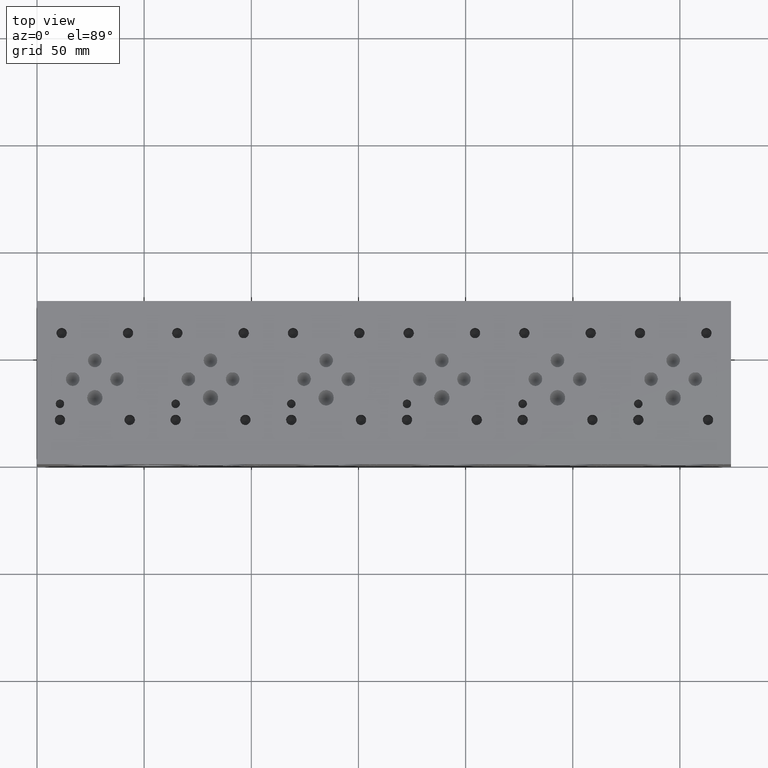
[diagram: clean part render]
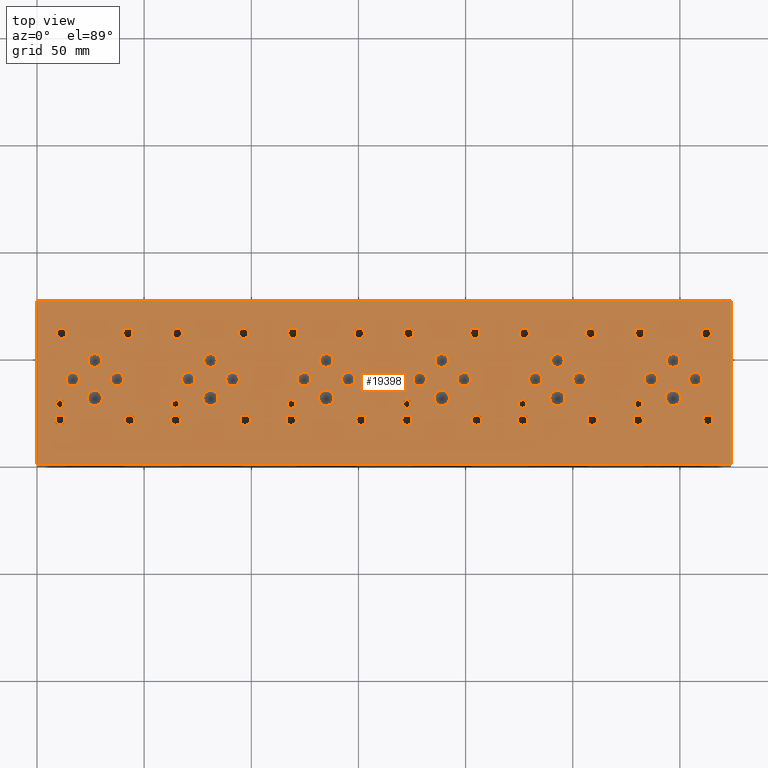
[diagram: same view with one face highlighted and labeled with its STEP entity id]
A machine part, top view. The second image highlights one B-rep face of the part: STEP entity #19398.
In plain terms, the highlighted planar face has unit normal (0, 0, 1).
Its self-contained STEP definition (entity closure, byte-faithful):
#361=CIRCLE('',#19871,1.9812);
#362=CIRCLE('',#19872,1.9812);
#365=CIRCLE('',#19877,1.9812);
#366=CIRCLE('',#19878,1.9812);
#369=CIRCLE('',#19883,1.9812);
#370=CIRCLE('',#19884,1.9812);
#373=CIRCLE('',#19889,1.9812);
#374=CIRCLE('',#19890,1.9812);
#377=CIRCLE('',#19895,1.9812);
#378=CIRCLE('',#19896,1.9812);
#381=CIRCLE('',#19901,3.5687);
#382=CIRCLE('',#19902,3.5687);
#385=CIRCLE('',#19907,3.5687);
#386=CIRCLE('',#19908,3.5687);
#389=CIRCLE('',#19913,3.5687);
#390=CIRCLE('',#19914,3.5687);
#393=CIRCLE('',#19919,3.5687);
#394=CIRCLE('',#19920,3.5687);
#397=CIRCLE('',#19925,3.5687);
#398=CIRCLE('',#19926,3.5687);
#401=CIRCLE('',#19931,3.5687);
#402=CIRCLE('',#19932,3.5687);
#405=CIRCLE('',#19937,3.175);
#406=CIRCLE('',#19938,3.175);
#409=CIRCLE('',#19943,3.175);
#410=CIRCLE('',#19944,3.175);
#413=CIRCLE('',#19949,3.175);
#414=CIRCLE('',#19950,3.175);
#417=CIRCLE('',#19955,3.175);
#418=CIRCLE('',#19956,3.175);
#421=CIRCLE('',#19961,3.175);
#422=CIRCLE('',#19962,3.175);
#425=CIRCLE('',#19967,3.175);
#426=CIRCLE('',#19968,3.175);
#429=CIRCLE('',#19973,3.175);
#430=CIRCLE('',#19974,3.175);
#433=CIRCLE('',#19979,3.175);
#434=CIRCLE('',#19980,3.175);
#437=CIRCLE('',#19985,3.175);
#438=CIRCLE('',#19986,3.175);
#441=CIRCLE('',#19991,3.175);
#442=CIRCLE('',#19992,3.175);
#445=CIRCLE('',#19997,3.175);
#446=CIRCLE('',#19998,3.175);
#449=CIRCLE('',#20003,3.175);
#450=CIRCLE('',#20004,3.175);
#453=CIRCLE('',#20009,3.175);
#454=CIRCLE('',#20010,3.175);
#457=CIRCLE('',#20015,3.175);
#458=CIRCLE('',#20016,3.175);
#461=CIRCLE('',#20021,3.175);
#462=CIRCLE('',#20022,3.175);
#465=CIRCLE('',#20027,3.175);
#466=CIRCLE('',#20028,3.175);
#469=CIRCLE('',#20033,3.175);
#470=CIRCLE('',#20034,3.175);
#473=CIRCLE('',#20039,3.175);
#474=CIRCLE('',#20040,3.175);
#477=CIRCLE('',#20045,1.9812);
#478=CIRCLE('',#20046,1.9812);
#484=CIRCLE('',#20055,2.413);
#485=CIRCLE('',#20056,2.413);
#491=CIRCLE('',#20066,2.413);
#492=CIRCLE('',#20067,2.413);
#498=CIRCLE('',#20077,2.413);
#499=CIRCLE('',#20078,2.413);
#505=CIRCLE('',#20088,2.413);
#506=CIRCLE('',#20089,2.413);
#512=CIRCLE('',#20099,2.413);
#513=CIRCLE('',#20100,2.413);
#519=CIRCLE('',#20110,2.413);
#520=CIRCLE('',#20111,2.413);
#526=CIRCLE('',#20121,2.413);
#527=CIRCLE('',#20122,2.413);
#533=CIRCLE('',#20132,2.413);
#534=CIRCLE('',#20133,2.413);
#540=CIRCLE('',#20143,2.413);
#541=CIRCLE('',#20144,2.413);
#547=CIRCLE('',#20154,2.413);
#548=CIRCLE('',#20155,2.413);
#554=CIRCLE('',#20165,2.413);
#555=CIRCLE('',#20166,2.413);
#561=CIRCLE('',#20176,2.413);
#562=CIRCLE('',#20177,2.413);
#568=CIRCLE('',#20187,2.413);
#569=CIRCLE('',#20188,2.413);
#575=CIRCLE('',#20198,2.413);
#576=CIRCLE('',#20199,2.413);
#582=CIRCLE('',#20209,2.413);
#583=CIRCLE('',#20210,2.413);
#589=CIRCLE('',#20220,2.413);
#590=CIRCLE('',#20221,2.413);
#596=CIRCLE('',#20231,2.413);
#597=CIRCLE('',#20232,2.413);
#603=CIRCLE('',#20242,2.413);
#604=CIRCLE('',#20243,2.413);
#610=CIRCLE('',#20253,2.413);
#611=CIRCLE('',#20254,2.413);
#617=CIRCLE('',#20264,2.413);
#618=CIRCLE('',#20265,2.413);
#624=CIRCLE('',#20275,2.413);
#625=CIRCLE('',#20276,2.413);
#631=CIRCLE('',#20286,2.413);
#632=CIRCLE('',#20287,2.413);
#638=CIRCLE('',#20297,2.413);
#639=CIRCLE('',#20298,2.413);
#645=CIRCLE('',#20308,2.413);
#646=CIRCLE('',#20309,2.413);
#1107=FACE_BOUND('',#4046,.T.);
#1108=FACE_BOUND('',#4047,.T.);
#1109=FACE_BOUND('',#4048,.T.);
#1110=FACE_BOUND('',#4049,.T.);
#1111=FACE_BOUND('',#4050,.T.);
#1112=FACE_BOUND('',#4051,.T.);
#1113=FACE_BOUND('',#4052,.T.);
#1114=FACE_BOUND('',#4053,.T.);
#1115=FACE_BOUND('',#4054,.T.);
#1116=FACE_BOUND('',#4055,.T.);
#1117=FACE_BOUND('',#4056,.T.);
#1118=FACE_BOUND('',#4057,.T.);
#1119=FACE_BOUND('',#4058,.T.);
#1120=FACE_BOUND('',#4059,.T.);
#1121=FACE_BOUND('',#4060,.T.);
#1122=FACE_BOUND('',#4061,.T.);
#1123=FACE_BOUND('',#4062,.T.);
#1124=FACE_BOUND('',#4063,.T.);
#1125=FACE_BOUND('',#4064,.T.);
#1126=FACE_BOUND('',#4065,.T.);
#1127=FACE_BOUND('',#4066,.T.);
#1128=FACE_BOUND('',#4067,.T.);
#1129=FACE_BOUND('',#4068,.T.);
#1130=FACE_BOUND('',#4069,.T.);
#1131=FACE_BOUND('',#4070,.T.);
#1132=FACE_BOUND('',#4071,.T.);
#1133=FACE_BOUND('',#4072,.T.);
#1134=FACE_BOUND('',#4073,.T.);
#1135=FACE_BOUND('',#4074,.T.);
#1136=FACE_BOUND('',#4075,.T.);
#1137=FACE_BOUND('',#4076,.T.);
#1138=FACE_BOUND('',#4077,.T.);
#1139=FACE_BOUND('',#4078,.T.);
#1140=FACE_BOUND('',#4079,.T.);
#1141=FACE_BOUND('',#4080,.T.);
#1142=FACE_BOUND('',#4081,.T.);
#1143=FACE_BOUND('',#4082,.T.);
#1144=FACE_BOUND('',#4083,.T.);
#1145=FACE_BOUND('',#4084,.T.);
#1146=FACE_BOUND('',#4085,.T.);
#1147=FACE_BOUND('',#4086,.T.);
#1148=FACE_BOUND('',#4087,.T.);
#1149=FACE_BOUND('',#4088,.T.);
#1150=FACE_BOUND('',#4089,.T.);
#1151=FACE_BOUND('',#4090,.T.);
#1152=FACE_BOUND('',#4091,.T.);
#1153=FACE_BOUND('',#4092,.T.);
#1154=FACE_BOUND('',#4093,.T.);
#1155=FACE_BOUND('',#4094,.T.);
#1156=FACE_BOUND('',#4095,.T.);
#1157=FACE_BOUND('',#4096,.T.);
#1158=FACE_BOUND('',#4097,.T.);
#1159=FACE_BOUND('',#4098,.T.);
#1160=FACE_BOUND('',#4099,.T.);
#2881=FACE_OUTER_BOUND('',#4045,.T.);
#4045=EDGE_LOOP('',(#17169,#17170,#17171,#17172));
#4046=EDGE_LOOP('',(#17173,#17174));
#4047=EDGE_LOOP('',(#17175,#17176));
#4048=EDGE_LOOP('',(#17177,#17178));
#4049=EDGE_LOOP('',(#17179,#17180));
#4050=EDGE_LOOP('',(#17181,#17182));
#4051=EDGE_LOOP('',(#17183,#17184));
#4052=EDGE_LOOP('',(#17185,#17186));
#4053=EDGE_LOOP('',(#17187,#17188));
#4054=EDGE_LOOP('',(#17189,#17190));
#4055=EDGE_LOOP('',(#17191,#17192));
#4056=EDGE_LOOP('',(#17193,#17194));
#4057=EDGE_LOOP('',(#17195,#17196));
#4058=EDGE_LOOP('',(#17197,#17198));
#4059=EDGE_LOOP('',(#17199,#17200));
#4060=EDGE_LOOP('',(#17201,#17202));
#4061=EDGE_LOOP('',(#17203,#17204));
#4062=EDGE_LOOP('',(#17205,#17206));
#4063=EDGE_LOOP('',(#17207,#17208));
#4064=EDGE_LOOP('',(#17209,#17210));
#4065=EDGE_LOOP('',(#17211,#17212));
#4066=EDGE_LOOP('',(#17213,#17214));
#4067=EDGE_LOOP('',(#17215,#17216));
#4068=EDGE_LOOP('',(#17217,#17218));
#4069=EDGE_LOOP('',(#17219,#17220));
#4070=EDGE_LOOP('',(#17221,#17222));
#4071=EDGE_LOOP('',(#17223,#17224));
#4072=EDGE_LOOP('',(#17225,#17226));
#4073=EDGE_LOOP('',(#17227,#17228));
#4074=EDGE_LOOP('',(#17229,#17230));
#4075=EDGE_LOOP('',(#17231,#17232));
#4076=EDGE_LOOP('',(#17233,#17234));
#4077=EDGE_LOOP('',(#17235,#17236));
#4078=EDGE_LOOP('',(#17237,#17238));
#4079=EDGE_LOOP('',(#17239,#17240));
#4080=EDGE_LOOP('',(#17241,#17242));
#4081=EDGE_LOOP('',(#17243,#17244));
#4082=EDGE_LOOP('',(#17245,#17246));
#4083=EDGE_LOOP('',(#17247,#17248));
#4084=EDGE_LOOP('',(#17249,#17250));
#4085=EDGE_LOOP('',(#17251,#17252));
#4086=EDGE_LOOP('',(#17253,#17254));
#4087=EDGE_LOOP('',(#17255,#17256));
#4088=EDGE_LOOP('',(#17257,#17258));
#4089=EDGE_LOOP('',(#17259,#17260));
#4090=EDGE_LOOP('',(#17261,#17262));
#4091=EDGE_LOOP('',(#17263,#17264));
#4092=EDGE_LOOP('',(#17265,#17266));
#4093=EDGE_LOOP('',(#17267,#17268));
#4094=EDGE_LOOP('',(#17269,#17270));
#4095=EDGE_LOOP('',(#17271,#17272));
#4096=EDGE_LOOP('',(#17273,#17274));
#4097=EDGE_LOOP('',(#17275,#17276));
#4098=EDGE_LOOP('',(#17277,#17278));
#4099=EDGE_LOOP('',(#17279,#17280));
#4360=LINE('',#27734,#5951);
#5303=LINE('',#31658,#6894);
#5361=LINE('',#31929,#6952);
#5691=LINE('',#33944,#7282);
#5951=VECTOR('',#21216,10.);
#6894=VECTOR('',#22861,10.);
#6952=VECTOR('',#22973,10.);
#7282=VECTOR('',#25273,10.);
#7607=VERTEX_POINT('',#27731);
#7608=VERTEX_POINT('',#27733);
#8414=VERTEX_POINT('',#31656);
#8472=VERTEX_POINT('',#31928);
#8500=VERTEX_POINT('',#32004);
#8501=VERTEX_POINT('',#32005);
#8505=VERTEX_POINT('',#32017);
#8506=VERTEX_POINT('',#32018);
#8510=VERTEX_POINT('',#32030);
#8511=VERTEX_POINT('',#32031);
#8515=VERTEX_POINT('',#32043);
#8516=VERTEX_POINT('',#32044);
#8520=VERTEX_POINT('',#32056);
#8521=VERTEX_POINT('',#32057);
#8525=VERTEX_POINT('',#32069);
#8526=VERTEX_POINT('',#32070);
#8530=VERTEX_POINT('',#32082);
#8531=VERTEX_POINT('',#32083);
#8535=VERTEX_POINT('',#32095);
#8536=VERTEX_POINT('',#32096);
#8540=VERTEX_POINT('',#32108);
#8541=VERTEX_POINT('',#32109);
#8545=VERTEX_POINT('',#32121);
#8546=VERTEX_POINT('',#32122);
#8550=VERTEX_POINT('',#32134);
#8551=VERTEX_POINT('',#32135);
#8555=VERTEX_POINT('',#32147);
#8556=VERTEX_POINT('',#32148);
#8560=VERTEX_POINT('',#32160);
#8561=VERTEX_POINT('',#32161);
#8565=VERTEX_POINT('',#32173);
#8566=VERTEX_POINT('',#32174);
#8570=VERTEX_POINT('',#32186);
#8571=VERTEX_POINT('',#32187);
#8575=VERTEX_POINT('',#32199);
#8576=VERTEX_POINT('',#32200);
#8580=VERTEX_POINT('',#32212);
#8581=VERTEX_POINT('',#32213);
#8585=VERTEX_POINT('',#32225);
#8586=VERTEX_POINT('',#32226);
#8590=VERTEX_POINT('',#32238);
#8591=VERTEX_POINT('',#32239);
#8595=VERTEX_POINT('',#32251);
#8596=VERTEX_POINT('',#32252);
#8600=VERTEX_POINT('',#32264);
#8601=VERTEX_POINT('',#32265);
#8605=VERTEX_POINT('',#32277);
#8606=VERTEX_POINT('',#32278);
#8610=VERTEX_POINT('',#32290);
#8611=VERTEX_POINT('',#32291);
#8615=VERTEX_POINT('',#32303);
#8616=VERTEX_POINT('',#32304);
#8620=VERTEX_POINT('',#32316);
#8621=VERTEX_POINT('',#32317);
#8625=VERTEX_POINT('',#32329);
#8626=VERTEX_POINT('',#32330);
#8630=VERTEX_POINT('',#32342);
#8631=VERTEX_POINT('',#32343);
#8635=VERTEX_POINT('',#32355);
#8636=VERTEX_POINT('',#32356);
#8640=VERTEX_POINT('',#32368);
#8641=VERTEX_POINT('',#32369);
#8645=VERTEX_POINT('',#32381);
#8646=VERTEX_POINT('',#32382);
#8653=VERTEX_POINT('',#32401);
#8654=VERTEX_POINT('',#32402);
#8661=VERTEX_POINT('',#32423);
#8662=VERTEX_POINT('',#32424);
#8669=VERTEX_POINT('',#32445);
#8670=VERTEX_POINT('',#32446);
#8677=VERTEX_POINT('',#32467);
#8678=VERTEX_POINT('',#32468);
#8685=VERTEX_POINT('',#32489);
#8686=VERTEX_POINT('',#32490);
#8693=VERTEX_POINT('',#32511);
#8694=VERTEX_POINT('',#32512);
#8701=VERTEX_POINT('',#32533);
#8702=VERTEX_POINT('',#32534);
#8709=VERTEX_POINT('',#32555);
#8710=VERTEX_POINT('',#32556);
#8717=VERTEX_POINT('',#32577);
#8718=VERTEX_POINT('',#32578);
#8725=VERTEX_POINT('',#32599);
#8726=VERTEX_POINT('',#32600);
#8733=VERTEX_POINT('',#32621);
#8734=VERTEX_POINT('',#32622);
#8741=VERTEX_POINT('',#32643);
#8742=VERTEX_POINT('',#32644);
#8749=VERTEX_POINT('',#32665);
#8750=VERTEX_POINT('',#32666);
#8757=VERTEX_POINT('',#32687);
#8758=VERTEX_POINT('',#32688);
#8765=VERTEX_POINT('',#32709);
#8766=VERTEX_POINT('',#32710);
#8773=VERTEX_POINT('',#32731);
#8774=VERTEX_POINT('',#32732);
#8781=VERTEX_POINT('',#32753);
#8782=VERTEX_POINT('',#32754);
#8789=VERTEX_POINT('',#32775);
#8790=VERTEX_POINT('',#32776);
#8797=VERTEX_POINT('',#32797);
#8798=VERTEX_POINT('',#32798);
#8805=VERTEX_POINT('',#32819);
#8806=VERTEX_POINT('',#32820);
#8813=VERTEX_POINT('',#32841);
#8814=VERTEX_POINT('',#32842);
#8821=VERTEX_POINT('',#32863);
#8822=VERTEX_POINT('',#32864);
#8829=VERTEX_POINT('',#32885);
#8830=VERTEX_POINT('',#32886);
#8837=VERTEX_POINT('',#32907);
#8838=VERTEX_POINT('',#32908);
#9658=EDGE_CURVE('',#7608,#7607,#4360,.T.);
#10855=EDGE_CURVE('',#7607,#8414,#5303,.T.);
#10937=EDGE_CURVE('',#8472,#7608,#5361,.T.);
#10974=EDGE_CURVE('',#8500,#8501,#361,.T.);
#10975=EDGE_CURVE('',#8501,#8500,#362,.T.);
#10980=EDGE_CURVE('',#8505,#8506,#365,.T.);
#10981=EDGE_CURVE('',#8506,#8505,#366,.T.);
#10986=EDGE_CURVE('',#8510,#8511,#369,.T.);
#10987=EDGE_CURVE('',#8511,#8510,#370,.T.);
#10992=EDGE_CURVE('',#8515,#8516,#373,.T.);
#10993=EDGE_CURVE('',#8516,#8515,#374,.T.);
#10998=EDGE_CURVE('',#8520,#8521,#377,.T.);
#10999=EDGE_CURVE('',#8521,#8520,#378,.T.);
#11004=EDGE_CURVE('',#8525,#8526,#381,.T.);
#11005=EDGE_CURVE('',#8526,#8525,#382,.T.);
#11010=EDGE_CURVE('',#8530,#8531,#385,.T.);
#11011=EDGE_CURVE('',#8531,#8530,#386,.T.);
#11016=EDGE_CURVE('',#8535,#8536,#389,.T.);
#11017=EDGE_CURVE('',#8536,#8535,#390,.T.);
#11022=EDGE_CURVE('',#8540,#8541,#393,.T.);
#11023=EDGE_CURVE('',#8541,#8540,#394,.T.);
#11028=EDGE_CURVE('',#8545,#8546,#397,.T.);
#11029=EDGE_CURVE('',#8546,#8545,#398,.T.);
#11034=EDGE_CURVE('',#8550,#8551,#401,.T.);
#11035=EDGE_CURVE('',#8551,#8550,#402,.T.);
#11040=EDGE_CURVE('',#8555,#8556,#405,.T.);
#11041=EDGE_CURVE('',#8556,#8555,#406,.T.);
#11046=EDGE_CURVE('',#8560,#8561,#409,.T.);
#11047=EDGE_CURVE('',#8561,#8560,#410,.T.);
#11052=EDGE_CURVE('',#8565,#8566,#413,.T.);
#11053=EDGE_CURVE('',#8566,#8565,#414,.T.);
#11058=EDGE_CURVE('',#8570,#8571,#417,.T.);
#11059=EDGE_CURVE('',#8571,#8570,#418,.T.);
#11064=EDGE_CURVE('',#8575,#8576,#421,.T.);
#11065=EDGE_CURVE('',#8576,#8575,#422,.T.);
#11070=EDGE_CURVE('',#8580,#8581,#425,.T.);
#11071=EDGE_CURVE('',#8581,#8580,#426,.T.);
#11076=EDGE_CURVE('',#8585,#8586,#429,.T.);
#11077=EDGE_CURVE('',#8586,#8585,#430,.T.);
#11082=EDGE_CURVE('',#8590,#8591,#433,.T.);
#11083=EDGE_CURVE('',#8591,#8590,#434,.T.);
#11088=EDGE_CURVE('',#8595,#8596,#437,.T.);
#11089=EDGE_CURVE('',#8596,#8595,#438,.T.);
#11094=EDGE_CURVE('',#8600,#8601,#441,.T.);
#11095=EDGE_CURVE('',#8601,#8600,#442,.T.);
#11100=EDGE_CURVE('',#8605,#8606,#445,.T.);
#11101=EDGE_CURVE('',#8606,#8605,#446,.T.);
#11106=EDGE_CURVE('',#8610,#8611,#449,.T.);
#11107=EDGE_CURVE('',#8611,#8610,#450,.T.);
#11112=EDGE_CURVE('',#8615,#8616,#453,.T.);
#11113=EDGE_CURVE('',#8616,#8615,#454,.T.);
#11118=EDGE_CURVE('',#8620,#8621,#457,.T.);
#11119=EDGE_CURVE('',#8621,#8620,#458,.T.);
#11124=EDGE_CURVE('',#8625,#8626,#461,.T.);
#11125=EDGE_CURVE('',#8626,#8625,#462,.T.);
#11130=EDGE_CURVE('',#8630,#8631,#465,.T.);
#11131=EDGE_CURVE('',#8631,#8630,#466,.T.);
#11136=EDGE_CURVE('',#8635,#8636,#469,.T.);
#11137=EDGE_CURVE('',#8636,#8635,#470,.T.);
#11142=EDGE_CURVE('',#8640,#8641,#473,.T.);
#11143=EDGE_CURVE('',#8641,#8640,#474,.T.);
#11148=EDGE_CURVE('',#8645,#8646,#477,.T.);
#11149=EDGE_CURVE('',#8646,#8645,#478,.T.);
#11157=EDGE_CURVE('',#8653,#8654,#484,.T.);
#11158=EDGE_CURVE('',#8654,#8653,#485,.T.);
#11167=EDGE_CURVE('',#8661,#8662,#491,.T.);
#11168=EDGE_CURVE('',#8662,#8661,#492,.T.);
#11177=EDGE_CURVE('',#8669,#8670,#498,.T.);
#11178=EDGE_CURVE('',#8670,#8669,#499,.T.);
#11187=EDGE_CURVE('',#8677,#8678,#505,.T.);
#11188=EDGE_CURVE('',#8678,#8677,#506,.T.);
#11197=EDGE_CURVE('',#8685,#8686,#512,.T.);
#11198=EDGE_CURVE('',#8686,#8685,#513,.T.);
#11207=EDGE_CURVE('',#8693,#8694,#519,.T.);
#11208=EDGE_CURVE('',#8694,#8693,#520,.T.);
#11217=EDGE_CURVE('',#8701,#8702,#526,.T.);
#11218=EDGE_CURVE('',#8702,#8701,#527,.T.);
#11227=EDGE_CURVE('',#8709,#8710,#533,.T.);
#11228=EDGE_CURVE('',#8710,#8709,#534,.T.);
#11237=EDGE_CURVE('',#8717,#8718,#540,.T.);
#11238=EDGE_CURVE('',#8718,#8717,#541,.T.);
#11247=EDGE_CURVE('',#8725,#8726,#547,.T.);
#11248=EDGE_CURVE('',#8726,#8725,#548,.T.);
#11257=EDGE_CURVE('',#8733,#8734,#554,.T.);
#11258=EDGE_CURVE('',#8734,#8733,#555,.T.);
#11267=EDGE_CURVE('',#8741,#8742,#561,.T.);
#11268=EDGE_CURVE('',#8742,#8741,#562,.T.);
#11277=EDGE_CURVE('',#8749,#8750,#568,.T.);
#11278=EDGE_CURVE('',#8750,#8749,#569,.T.);
#11287=EDGE_CURVE('',#8757,#8758,#575,.T.);
#11288=EDGE_CURVE('',#8758,#8757,#576,.T.);
#11297=EDGE_CURVE('',#8765,#8766,#582,.T.);
#11298=EDGE_CURVE('',#8766,#8765,#583,.T.);
#11307=EDGE_CURVE('',#8773,#8774,#589,.T.);
#11308=EDGE_CURVE('',#8774,#8773,#590,.T.);
#11317=EDGE_CURVE('',#8781,#8782,#596,.T.);
#11318=EDGE_CURVE('',#8782,#8781,#597,.T.);
#11327=EDGE_CURVE('',#8789,#8790,#603,.T.);
#11328=EDGE_CURVE('',#8790,#8789,#604,.T.);
#11337=EDGE_CURVE('',#8797,#8798,#610,.T.);
#11338=EDGE_CURVE('',#8798,#8797,#611,.T.);
#11347=EDGE_CURVE('',#8805,#8806,#617,.T.);
#11348=EDGE_CURVE('',#8806,#8805,#618,.T.);
#11357=EDGE_CURVE('',#8813,#8814,#624,.T.);
#11358=EDGE_CURVE('',#8814,#8813,#625,.T.);
#11367=EDGE_CURVE('',#8821,#8822,#631,.T.);
#11368=EDGE_CURVE('',#8822,#8821,#632,.T.);
#11377=EDGE_CURVE('',#8829,#8830,#638,.T.);
#11378=EDGE_CURVE('',#8830,#8829,#639,.T.);
#11387=EDGE_CURVE('',#8837,#8838,#645,.T.);
#11388=EDGE_CURVE('',#8838,#8837,#646,.T.);
#11876=EDGE_CURVE('',#8414,#8472,#5691,.T.);
#17169=ORIENTED_EDGE('',*,*,#9658,.T.);
#17170=ORIENTED_EDGE('',*,*,#10855,.T.);
#17171=ORIENTED_EDGE('',*,*,#11876,.T.);
#17172=ORIENTED_EDGE('',*,*,#10937,.T.);
#17173=ORIENTED_EDGE('',*,*,#10974,.T.);
#17174=ORIENTED_EDGE('',*,*,#10975,.T.);
#17175=ORIENTED_EDGE('',*,*,#10980,.T.);
#17176=ORIENTED_EDGE('',*,*,#10981,.T.);
#17177=ORIENTED_EDGE('',*,*,#10986,.T.);
#17178=ORIENTED_EDGE('',*,*,#10987,.T.);
#17179=ORIENTED_EDGE('',*,*,#10992,.T.);
#17180=ORIENTED_EDGE('',*,*,#10993,.T.);
#17181=ORIENTED_EDGE('',*,*,#10998,.T.);
#17182=ORIENTED_EDGE('',*,*,#10999,.T.);
#17183=ORIENTED_EDGE('',*,*,#11004,.T.);
#17184=ORIENTED_EDGE('',*,*,#11005,.T.);
#17185=ORIENTED_EDGE('',*,*,#11010,.T.);
#17186=ORIENTED_EDGE('',*,*,#11011,.T.);
#17187=ORIENTED_EDGE('',*,*,#11016,.T.);
#17188=ORIENTED_EDGE('',*,*,#11017,.T.);
#17189=ORIENTED_EDGE('',*,*,#11022,.T.);
#17190=ORIENTED_EDGE('',*,*,#11023,.T.);
#17191=ORIENTED_EDGE('',*,*,#11028,.T.);
#17192=ORIENTED_EDGE('',*,*,#11029,.T.);
#17193=ORIENTED_EDGE('',*,*,#11034,.T.);
#17194=ORIENTED_EDGE('',*,*,#11035,.T.);
#17195=ORIENTED_EDGE('',*,*,#11040,.T.);
#17196=ORIENTED_EDGE('',*,*,#11041,.T.);
#17197=ORIENTED_EDGE('',*,*,#11046,.T.);
#17198=ORIENTED_EDGE('',*,*,#11047,.T.);
#17199=ORIENTED_EDGE('',*,*,#11052,.T.);
#17200=ORIENTED_EDGE('',*,*,#11053,.T.);
#17201=ORIENTED_EDGE('',*,*,#11058,.T.);
#17202=ORIENTED_EDGE('',*,*,#11059,.T.);
#17203=ORIENTED_EDGE('',*,*,#11064,.T.);
#17204=ORIENTED_EDGE('',*,*,#11065,.T.);
#17205=ORIENTED_EDGE('',*,*,#11070,.T.);
#17206=ORIENTED_EDGE('',*,*,#11071,.T.);
#17207=ORIENTED_EDGE('',*,*,#11076,.T.);
#17208=ORIENTED_EDGE('',*,*,#11077,.T.);
#17209=ORIENTED_EDGE('',*,*,#11082,.T.);
#17210=ORIENTED_EDGE('',*,*,#11083,.T.);
#17211=ORIENTED_EDGE('',*,*,#11088,.T.);
#17212=ORIENTED_EDGE('',*,*,#11089,.T.);
#17213=ORIENTED_EDGE('',*,*,#11094,.T.);
#17214=ORIENTED_EDGE('',*,*,#11095,.T.);
#17215=ORIENTED_EDGE('',*,*,#11100,.T.);
#17216=ORIENTED_EDGE('',*,*,#11101,.T.);
#17217=ORIENTED_EDGE('',*,*,#11106,.T.);
#17218=ORIENTED_EDGE('',*,*,#11107,.T.);
#17219=ORIENTED_EDGE('',*,*,#11112,.T.);
#17220=ORIENTED_EDGE('',*,*,#11113,.T.);
#17221=ORIENTED_EDGE('',*,*,#11118,.T.);
#17222=ORIENTED_EDGE('',*,*,#11119,.T.);
#17223=ORIENTED_EDGE('',*,*,#11124,.T.);
#17224=ORIENTED_EDGE('',*,*,#11125,.T.);
#17225=ORIENTED_EDGE('',*,*,#11130,.T.);
#17226=ORIENTED_EDGE('',*,*,#11131,.T.);
#17227=ORIENTED_EDGE('',*,*,#11136,.T.);
#17228=ORIENTED_EDGE('',*,*,#11137,.T.);
#17229=ORIENTED_EDGE('',*,*,#11142,.T.);
#17230=ORIENTED_EDGE('',*,*,#11143,.T.);
#17231=ORIENTED_EDGE('',*,*,#11148,.T.);
#17232=ORIENTED_EDGE('',*,*,#11149,.T.);
#17233=ORIENTED_EDGE('',*,*,#11157,.T.);
#17234=ORIENTED_EDGE('',*,*,#11158,.T.);
#17235=ORIENTED_EDGE('',*,*,#11167,.T.);
#17236=ORIENTED_EDGE('',*,*,#11168,.T.);
#17237=ORIENTED_EDGE('',*,*,#11177,.T.);
#17238=ORIENTED_EDGE('',*,*,#11178,.T.);
#17239=ORIENTED_EDGE('',*,*,#11187,.T.);
#17240=ORIENTED_EDGE('',*,*,#11188,.T.);
#17241=ORIENTED_EDGE('',*,*,#11197,.T.);
#17242=ORIENTED_EDGE('',*,*,#11198,.T.);
#17243=ORIENTED_EDGE('',*,*,#11207,.T.);
#17244=ORIENTED_EDGE('',*,*,#11208,.T.);
#17245=ORIENTED_EDGE('',*,*,#11217,.T.);
#17246=ORIENTED_EDGE('',*,*,#11218,.T.);
#17247=ORIENTED_EDGE('',*,*,#11227,.T.);
#17248=ORIENTED_EDGE('',*,*,#11228,.T.);
#17249=ORIENTED_EDGE('',*,*,#11237,.T.);
#17250=ORIENTED_EDGE('',*,*,#11238,.T.);
#17251=ORIENTED_EDGE('',*,*,#11247,.T.);
#17252=ORIENTED_EDGE('',*,*,#11248,.T.);
#17253=ORIENTED_EDGE('',*,*,#11257,.T.);
#17254=ORIENTED_EDGE('',*,*,#11258,.T.);
#17255=ORIENTED_EDGE('',*,*,#11267,.T.);
#17256=ORIENTED_EDGE('',*,*,#11268,.T.);
#17257=ORIENTED_EDGE('',*,*,#11277,.T.);
#17258=ORIENTED_EDGE('',*,*,#11278,.T.);
#17259=ORIENTED_EDGE('',*,*,#11287,.T.);
#17260=ORIENTED_EDGE('',*,*,#11288,.T.);
#17261=ORIENTED_EDGE('',*,*,#11297,.T.);
#17262=ORIENTED_EDGE('',*,*,#11298,.T.);
#17263=ORIENTED_EDGE('',*,*,#11307,.T.);
#17264=ORIENTED_EDGE('',*,*,#11308,.T.);
#17265=ORIENTED_EDGE('',*,*,#11317,.T.);
#17266=ORIENTED_EDGE('',*,*,#11318,.T.);
#17267=ORIENTED_EDGE('',*,*,#11327,.T.);
#17268=ORIENTED_EDGE('',*,*,#11328,.T.);
#17269=ORIENTED_EDGE('',*,*,#11337,.T.);
#17270=ORIENTED_EDGE('',*,*,#11338,.T.);
#17271=ORIENTED_EDGE('',*,*,#11347,.T.);
#17272=ORIENTED_EDGE('',*,*,#11348,.T.);
#17273=ORIENTED_EDGE('',*,*,#11357,.T.);
#17274=ORIENTED_EDGE('',*,*,#11358,.T.);
#17275=ORIENTED_EDGE('',*,*,#11367,.T.);
#17276=ORIENTED_EDGE('',*,*,#11368,.T.);
#17277=ORIENTED_EDGE('',*,*,#11377,.T.);
#17278=ORIENTED_EDGE('',*,*,#11378,.T.);
#17279=ORIENTED_EDGE('',*,*,#11387,.T.);
#17280=ORIENTED_EDGE('',*,*,#11388,.T.);
#17762=PLANE('',#20837);
#19398=ADVANCED_FACE('',(#2881,#1107,#1108,#1109,#1110,#1111,#1112,#1113,
#1114,#1115,#1116,#1117,#1118,#1119,#1120,#1121,#1122,#1123,#1124,#1125,
#1126,#1127,#1128,#1129,#1130,#1131,#1132,#1133,#1134,#1135,#1136,#1137,
#1138,#1139,#1140,#1141,#1142,#1143,#1144,#1145,#1146,#1147,#1148,#1149,
#1150,#1151,#1152,#1153,#1154,#1155,#1156,#1157,#1158,#1159,#1160),#17762,
 .T.);
#19871=AXIS2_PLACEMENT_3D('',#32006,#23042,#23043);
#19872=AXIS2_PLACEMENT_3D('',#32007,#23044,#23045);
#19877=AXIS2_PLACEMENT_3D('',#32019,#23056,#23057);
#19878=AXIS2_PLACEMENT_3D('',#32020,#23058,#23059);
#19883=AXIS2_PLACEMENT_3D('',#32032,#23070,#23071);
#19884=AXIS2_PLACEMENT_3D('',#32033,#23072,#23073);
#19889=AXIS2_PLACEMENT_3D('',#32045,#23084,#23085);
#19890=AXIS2_PLACEMENT_3D('',#32046,#23086,#23087);
#19895=AXIS2_PLACEMENT_3D('',#32058,#23098,#23099);
#19896=AXIS2_PLACEMENT_3D('',#32059,#23100,#23101);
#19901=AXIS2_PLACEMENT_3D('',#32071,#23112,#23113);
#19902=AXIS2_PLACEMENT_3D('',#32072,#23114,#23115);
#19907=AXIS2_PLACEMENT_3D('',#32084,#23126,#23127);
#19908=AXIS2_PLACEMENT_3D('',#32085,#23128,#23129);
#19913=AXIS2_PLACEMENT_3D('',#32097,#23140,#23141);
#19914=AXIS2_PLACEMENT_3D('',#32098,#23142,#23143);
#19919=AXIS2_PLACEMENT_3D('',#32110,#23154,#23155);
#19920=AXIS2_PLACEMENT_3D('',#32111,#23156,#23157);
#19925=AXIS2_PLACEMENT_3D('',#32123,#23168,#23169);
#19926=AXIS2_PLACEMENT_3D('',#32124,#23170,#23171);
#19931=AXIS2_PLACEMENT_3D('',#32136,#23182,#23183);
#19932=AXIS2_PLACEMENT_3D('',#32137,#23184,#23185);
#19937=AXIS2_PLACEMENT_3D('',#32149,#23196,#23197);
#19938=AXIS2_PLACEMENT_3D('',#32150,#23198,#23199);
#19943=AXIS2_PLACEMENT_3D('',#32162,#23210,#23211);
#19944=AXIS2_PLACEMENT_3D('',#32163,#23212,#23213);
#19949=AXIS2_PLACEMENT_3D('',#32175,#23224,#23225);
#19950=AXIS2_PLACEMENT_3D('',#32176,#23226,#23227);
#19955=AXIS2_PLACEMENT_3D('',#32188,#23238,#23239);
#19956=AXIS2_PLACEMENT_3D('',#32189,#23240,#23241);
#19961=AXIS2_PLACEMENT_3D('',#32201,#23252,#23253);
#19962=AXIS2_PLACEMENT_3D('',#32202,#23254,#23255);
#19967=AXIS2_PLACEMENT_3D('',#32214,#23266,#23267);
#19968=AXIS2_PLACEMENT_3D('',#32215,#23268,#23269);
#19973=AXIS2_PLACEMENT_3D('',#32227,#23280,#23281);
#19974=AXIS2_PLACEMENT_3D('',#32228,#23282,#23283);
#19979=AXIS2_PLACEMENT_3D('',#32240,#23294,#23295);
#19980=AXIS2_PLACEMENT_3D('',#32241,#23296,#23297);
#19985=AXIS2_PLACEMENT_3D('',#32253,#23308,#23309);
#19986=AXIS2_PLACEMENT_3D('',#32254,#23310,#23311);
#19991=AXIS2_PLACEMENT_3D('',#32266,#23322,#23323);
#19992=AXIS2_PLACEMENT_3D('',#32267,#23324,#23325);
#19997=AXIS2_PLACEMENT_3D('',#32279,#23336,#23337);
#19998=AXIS2_PLACEMENT_3D('',#32280,#23338,#23339);
#20003=AXIS2_PLACEMENT_3D('',#32292,#23350,#23351);
#20004=AXIS2_PLACEMENT_3D('',#32293,#23352,#23353);
#20009=AXIS2_PLACEMENT_3D('',#32305,#23364,#23365);
#20010=AXIS2_PLACEMENT_3D('',#32306,#23366,#23367);
#20015=AXIS2_PLACEMENT_3D('',#32318,#23378,#23379);
#20016=AXIS2_PLACEMENT_3D('',#32319,#23380,#23381);
#20021=AXIS2_PLACEMENT_3D('',#32331,#23392,#23393);
#20022=AXIS2_PLACEMENT_3D('',#32332,#23394,#23395);
#20027=AXIS2_PLACEMENT_3D('',#32344,#23406,#23407);
#20028=AXIS2_PLACEMENT_3D('',#32345,#23408,#23409);
#20033=AXIS2_PLACEMENT_3D('',#32357,#23420,#23421);
#20034=AXIS2_PLACEMENT_3D('',#32358,#23422,#23423);
#20039=AXIS2_PLACEMENT_3D('',#32370,#23434,#23435);
#20040=AXIS2_PLACEMENT_3D('',#32371,#23436,#23437);
#20045=AXIS2_PLACEMENT_3D('',#32383,#23448,#23449);
#20046=AXIS2_PLACEMENT_3D('',#32384,#23450,#23451);
#20055=AXIS2_PLACEMENT_3D('',#32403,#23470,#23471);
#20056=AXIS2_PLACEMENT_3D('',#32404,#23472,#23473);
#20066=AXIS2_PLACEMENT_3D('',#32425,#23495,#23496);
#20067=AXIS2_PLACEMENT_3D('',#32426,#23497,#23498);
#20077=AXIS2_PLACEMENT_3D('',#32447,#23520,#23521);
#20078=AXIS2_PLACEMENT_3D('',#32448,#23522,#23523);
#20088=AXIS2_PLACEMENT_3D('',#32469,#23545,#23546);
#20089=AXIS2_PLACEMENT_3D('',#32470,#23547,#23548);
#20099=AXIS2_PLACEMENT_3D('',#32491,#23570,#23571);
#20100=AXIS2_PLACEMENT_3D('',#32492,#23572,#23573);
#20110=AXIS2_PLACEMENT_3D('',#32513,#23595,#23596);
#20111=AXIS2_PLACEMENT_3D('',#32514,#23597,#23598);
#20121=AXIS2_PLACEMENT_3D('',#32535,#23620,#23621);
#20122=AXIS2_PLACEMENT_3D('',#32536,#23622,#23623);
#20132=AXIS2_PLACEMENT_3D('',#32557,#23645,#23646);
#20133=AXIS2_PLACEMENT_3D('',#32558,#23647,#23648);
#20143=AXIS2_PLACEMENT_3D('',#32579,#23670,#23671);
#20144=AXIS2_PLACEMENT_3D('',#32580,#23672,#23673);
#20154=AXIS2_PLACEMENT_3D('',#32601,#23695,#23696);
#20155=AXIS2_PLACEMENT_3D('',#32602,#23697,#23698);
#20165=AXIS2_PLACEMENT_3D('',#32623,#23720,#23721);
#20166=AXIS2_PLACEMENT_3D('',#32624,#23722,#23723);
#20176=AXIS2_PLACEMENT_3D('',#32645,#23745,#23746);
#20177=AXIS2_PLACEMENT_3D('',#32646,#23747,#23748);
#20187=AXIS2_PLACEMENT_3D('',#32667,#23770,#23771);
#20188=AXIS2_PLACEMENT_3D('',#32668,#23772,#23773);
#20198=AXIS2_PLACEMENT_3D('',#32689,#23795,#23796);
#20199=AXIS2_PLACEMENT_3D('',#32690,#23797,#23798);
#20209=AXIS2_PLACEMENT_3D('',#32711,#23820,#23821);
#20210=AXIS2_PLACEMENT_3D('',#32712,#23822,#23823);
#20220=AXIS2_PLACEMENT_3D('',#32733,#23845,#23846);
#20221=AXIS2_PLACEMENT_3D('',#32734,#23847,#23848);
#20231=AXIS2_PLACEMENT_3D('',#32755,#23870,#23871);
#20232=AXIS2_PLACEMENT_3D('',#32756,#23872,#23873);
#20242=AXIS2_PLACEMENT_3D('',#32777,#23895,#23896);
#20243=AXIS2_PLACEMENT_3D('',#32778,#23897,#23898);
#20253=AXIS2_PLACEMENT_3D('',#32799,#23920,#23921);
#20254=AXIS2_PLACEMENT_3D('',#32800,#23922,#23923);
#20264=AXIS2_PLACEMENT_3D('',#32821,#23945,#23946);
#20265=AXIS2_PLACEMENT_3D('',#32822,#23947,#23948);
#20275=AXIS2_PLACEMENT_3D('',#32843,#23970,#23971);
#20276=AXIS2_PLACEMENT_3D('',#32844,#23972,#23973);
#20286=AXIS2_PLACEMENT_3D('',#32865,#23995,#23996);
#20287=AXIS2_PLACEMENT_3D('',#32866,#23997,#23998);
#20297=AXIS2_PLACEMENT_3D('',#32887,#24020,#24021);
#20298=AXIS2_PLACEMENT_3D('',#32888,#24022,#24023);
#20308=AXIS2_PLACEMENT_3D('',#32909,#24045,#24046);
#20309=AXIS2_PLACEMENT_3D('',#32910,#24047,#24048);
#20837=AXIS2_PLACEMENT_3D('',#33947,#25278,#25279);
#21216=DIRECTION('',(1.,0.,0.));
#22861=DIRECTION('',(0.,1.,0.));
#22973=DIRECTION('',(0.,-1.,0.));
#23042=DIRECTION('center_axis',(0.,0.,-1.));
#23043=DIRECTION('ref_axis',(1.,0.,0.));
#23044=DIRECTION('center_axis',(0.,0.,-1.));
#23045=DIRECTION('ref_axis',(1.,0.,0.));
#23056=DIRECTION('center_axis',(0.,0.,-1.));
#23057=DIRECTION('ref_axis',(1.,0.,0.));
#23058=DIRECTION('center_axis',(0.,0.,-1.));
#23059=DIRECTION('ref_axis',(1.,0.,0.));
#23070=DIRECTION('center_axis',(0.,0.,-1.));
#23071=DIRECTION('ref_axis',(1.,0.,0.));
#23072=DIRECTION('center_axis',(0.,0.,-1.));
#23073=DIRECTION('ref_axis',(1.,0.,0.));
#23084=DIRECTION('center_axis',(0.,0.,-1.));
#23085=DIRECTION('ref_axis',(1.,0.,0.));
#23086=DIRECTION('center_axis',(0.,0.,-1.));
#23087=DIRECTION('ref_axis',(1.,0.,0.));
#23098=DIRECTION('center_axis',(0.,0.,-1.));
#23099=DIRECTION('ref_axis',(1.,0.,0.));
#23100=DIRECTION('center_axis',(0.,0.,-1.));
#23101=DIRECTION('ref_axis',(1.,0.,0.));
#23112=DIRECTION('center_axis',(0.,0.,-1.));
#23113=DIRECTION('ref_axis',(1.,0.,0.));
#23114=DIRECTION('center_axis',(0.,0.,-1.));
#23115=DIRECTION('ref_axis',(1.,0.,0.));
#23126=DIRECTION('center_axis',(0.,0.,-1.));
#23127=DIRECTION('ref_axis',(1.,0.,0.));
#23128=DIRECTION('center_axis',(0.,0.,-1.));
#23129=DIRECTION('ref_axis',(1.,0.,0.));
#23140=DIRECTION('center_axis',(0.,0.,-1.));
#23141=DIRECTION('ref_axis',(1.,0.,0.));
#23142=DIRECTION('center_axis',(0.,0.,-1.));
#23143=DIRECTION('ref_axis',(1.,0.,0.));
#23154=DIRECTION('center_axis',(0.,0.,-1.));
#23155=DIRECTION('ref_axis',(1.,0.,0.));
#23156=DIRECTION('center_axis',(0.,0.,-1.));
#23157=DIRECTION('ref_axis',(1.,0.,0.));
#23168=DIRECTION('center_axis',(0.,0.,-1.));
#23169=DIRECTION('ref_axis',(1.,0.,0.));
#23170=DIRECTION('center_axis',(0.,0.,-1.));
#23171=DIRECTION('ref_axis',(1.,0.,0.));
#23182=DIRECTION('center_axis',(0.,0.,-1.));
#23183=DIRECTION('ref_axis',(1.,0.,0.));
#23184=DIRECTION('center_axis',(0.,0.,-1.));
#23185=DIRECTION('ref_axis',(1.,0.,0.));
#23196=DIRECTION('center_axis',(0.,0.,-1.));
#23197=DIRECTION('ref_axis',(1.,0.,0.));
#23198=DIRECTION('center_axis',(0.,0.,-1.));
#23199=DIRECTION('ref_axis',(1.,0.,0.));
#23210=DIRECTION('center_axis',(0.,0.,-1.));
#23211=DIRECTION('ref_axis',(1.,0.,0.));
#23212=DIRECTION('center_axis',(0.,0.,-1.));
#23213=DIRECTION('ref_axis',(1.,0.,0.));
#23224=DIRECTION('center_axis',(0.,0.,-1.));
#23225=DIRECTION('ref_axis',(1.,0.,0.));
#23226=DIRECTION('center_axis',(0.,0.,-1.));
#23227=DIRECTION('ref_axis',(1.,0.,0.));
#23238=DIRECTION('center_axis',(0.,0.,-1.));
#23239=DIRECTION('ref_axis',(1.,0.,0.));
#23240=DIRECTION('center_axis',(0.,0.,-1.));
#23241=DIRECTION('ref_axis',(1.,0.,0.));
#23252=DIRECTION('center_axis',(0.,0.,-1.));
#23253=DIRECTION('ref_axis',(1.,0.,0.));
#23254=DIRECTION('center_axis',(0.,0.,-1.));
#23255=DIRECTION('ref_axis',(1.,0.,0.));
#23266=DIRECTION('center_axis',(0.,0.,-1.));
#23267=DIRECTION('ref_axis',(1.,0.,0.));
#23268=DIRECTION('center_axis',(0.,0.,-1.));
#23269=DIRECTION('ref_axis',(1.,0.,0.));
#23280=DIRECTION('center_axis',(0.,0.,-1.));
#23281=DIRECTION('ref_axis',(1.,0.,0.));
#23282=DIRECTION('center_axis',(0.,0.,-1.));
#23283=DIRECTION('ref_axis',(1.,0.,0.));
#23294=DIRECTION('center_axis',(0.,0.,-1.));
#23295=DIRECTION('ref_axis',(1.,0.,0.));
#23296=DIRECTION('center_axis',(0.,0.,-1.));
#23297=DIRECTION('ref_axis',(1.,0.,0.));
#23308=DIRECTION('center_axis',(0.,0.,-1.));
#23309=DIRECTION('ref_axis',(1.,0.,0.));
#23310=DIRECTION('center_axis',(0.,0.,-1.));
#23311=DIRECTION('ref_axis',(1.,0.,0.));
#23322=DIRECTION('center_axis',(0.,0.,-1.));
#23323=DIRECTION('ref_axis',(1.,0.,0.));
#23324=DIRECTION('center_axis',(0.,0.,-1.));
#23325=DIRECTION('ref_axis',(1.,0.,0.));
#23336=DIRECTION('center_axis',(0.,0.,-1.));
#23337=DIRECTION('ref_axis',(1.,0.,0.));
#23338=DIRECTION('center_axis',(0.,0.,-1.));
#23339=DIRECTION('ref_axis',(1.,0.,0.));
#23350=DIRECTION('center_axis',(0.,0.,-1.));
#23351=DIRECTION('ref_axis',(1.,0.,0.));
#23352=DIRECTION('center_axis',(0.,0.,-1.));
#23353=DIRECTION('ref_axis',(1.,0.,0.));
#23364=DIRECTION('center_axis',(0.,0.,-1.));
#23365=DIRECTION('ref_axis',(1.,0.,0.));
#23366=DIRECTION('center_axis',(0.,0.,-1.));
#23367=DIRECTION('ref_axis',(1.,0.,0.));
#23378=DIRECTION('center_axis',(0.,0.,-1.));
#23379=DIRECTION('ref_axis',(1.,0.,0.));
#23380=DIRECTION('center_axis',(0.,0.,-1.));
#23381=DIRECTION('ref_axis',(1.,0.,0.));
#23392=DIRECTION('center_axis',(0.,0.,-1.));
#23393=DIRECTION('ref_axis',(1.,0.,0.));
#23394=DIRECTION('center_axis',(0.,0.,-1.));
#23395=DIRECTION('ref_axis',(1.,0.,0.));
#23406=DIRECTION('center_axis',(0.,0.,-1.));
#23407=DIRECTION('ref_axis',(1.,0.,0.));
#23408=DIRECTION('center_axis',(0.,0.,-1.));
#23409=DIRECTION('ref_axis',(1.,0.,0.));
#23420=DIRECTION('center_axis',(0.,0.,-1.));
#23421=DIRECTION('ref_axis',(1.,0.,0.));
#23422=DIRECTION('center_axis',(0.,0.,-1.));
#23423=DIRECTION('ref_axis',(1.,0.,0.));
#23434=DIRECTION('center_axis',(0.,0.,-1.));
#23435=DIRECTION('ref_axis',(1.,0.,0.));
#23436=DIRECTION('center_axis',(0.,0.,-1.));
#23437=DIRECTION('ref_axis',(1.,0.,0.));
#23448=DIRECTION('center_axis',(0.,0.,-1.));
#23449=DIRECTION('ref_axis',(1.,0.,0.));
#23450=DIRECTION('center_axis',(0.,0.,-1.));
#23451=DIRECTION('ref_axis',(1.,0.,0.));
#23470=DIRECTION('center_axis',(0.,0.,-1.));
#23471=DIRECTION('ref_axis',(1.,0.,0.));
#23472=DIRECTION('center_axis',(0.,0.,-1.));
#23473=DIRECTION('ref_axis',(1.,0.,0.));
#23495=DIRECTION('center_axis',(0.,0.,-1.));
#23496=DIRECTION('ref_axis',(1.,0.,0.));
#23497=DIRECTION('center_axis',(0.,0.,-1.));
#23498=DIRECTION('ref_axis',(1.,0.,0.));
#23520=DIRECTION('center_axis',(0.,0.,-1.));
#23521=DIRECTION('ref_axis',(1.,0.,0.));
#23522=DIRECTION('center_axis',(0.,0.,-1.));
#23523=DIRECTION('ref_axis',(1.,0.,0.));
#23545=DIRECTION('center_axis',(0.,0.,-1.));
#23546=DIRECTION('ref_axis',(1.,0.,0.));
#23547=DIRECTION('center_axis',(0.,0.,-1.));
#23548=DIRECTION('ref_axis',(1.,0.,0.));
#23570=DIRECTION('center_axis',(0.,0.,-1.));
#23571=DIRECTION('ref_axis',(1.,0.,0.));
#23572=DIRECTION('center_axis',(0.,0.,-1.));
#23573=DIRECTION('ref_axis',(1.,0.,0.));
#23595=DIRECTION('center_axis',(0.,0.,-1.));
#23596=DIRECTION('ref_axis',(1.,0.,0.));
#23597=DIRECTION('center_axis',(0.,0.,-1.));
#23598=DIRECTION('ref_axis',(1.,0.,0.));
#23620=DIRECTION('center_axis',(0.,0.,-1.));
#23621=DIRECTION('ref_axis',(1.,0.,0.));
#23622=DIRECTION('center_axis',(0.,0.,-1.));
#23623=DIRECTION('ref_axis',(1.,0.,0.));
#23645=DIRECTION('center_axis',(0.,0.,-1.));
#23646=DIRECTION('ref_axis',(1.,0.,0.));
#23647=DIRECTION('center_axis',(0.,0.,-1.));
#23648=DIRECTION('ref_axis',(1.,0.,0.));
#23670=DIRECTION('center_axis',(0.,0.,-1.));
#23671=DIRECTION('ref_axis',(1.,0.,0.));
#23672=DIRECTION('center_axis',(0.,0.,-1.));
#23673=DIRECTION('ref_axis',(1.,0.,0.));
#23695=DIRECTION('center_axis',(0.,0.,-1.));
#23696=DIRECTION('ref_axis',(1.,0.,0.));
#23697=DIRECTION('center_axis',(0.,0.,-1.));
#23698=DIRECTION('ref_axis',(1.,0.,0.));
#23720=DIRECTION('center_axis',(0.,0.,-1.));
#23721=DIRECTION('ref_axis',(1.,0.,0.));
#23722=DIRECTION('center_axis',(0.,0.,-1.));
#23723=DIRECTION('ref_axis',(1.,0.,0.));
#23745=DIRECTION('center_axis',(0.,0.,-1.));
#23746=DIRECTION('ref_axis',(1.,0.,0.));
#23747=DIRECTION('center_axis',(0.,0.,-1.));
#23748=DIRECTION('ref_axis',(1.,0.,0.));
#23770=DIRECTION('center_axis',(0.,0.,-1.));
#23771=DIRECTION('ref_axis',(1.,0.,0.));
#23772=DIRECTION('center_axis',(0.,0.,-1.));
#23773=DIRECTION('ref_axis',(1.,0.,0.));
#23795=DIRECTION('center_axis',(0.,0.,-1.));
#23796=DIRECTION('ref_axis',(1.,0.,0.));
#23797=DIRECTION('center_axis',(0.,0.,-1.));
#23798=DIRECTION('ref_axis',(1.,0.,0.));
#23820=DIRECTION('center_axis',(0.,0.,-1.));
#23821=DIRECTION('ref_axis',(1.,0.,0.));
#23822=DIRECTION('center_axis',(0.,0.,-1.));
#23823=DIRECTION('ref_axis',(1.,0.,0.));
#23845=DIRECTION('center_axis',(0.,0.,-1.));
#23846=DIRECTION('ref_axis',(1.,0.,0.));
#23847=DIRECTION('center_axis',(0.,0.,-1.));
#23848=DIRECTION('ref_axis',(1.,0.,0.));
#23870=DIRECTION('center_axis',(0.,0.,-1.));
#23871=DIRECTION('ref_axis',(1.,0.,0.));
#23872=DIRECTION('center_axis',(0.,0.,-1.));
#23873=DIRECTION('ref_axis',(1.,0.,0.));
#23895=DIRECTION('center_axis',(0.,0.,-1.));
#23896=DIRECTION('ref_axis',(1.,0.,0.));
#23897=DIRECTION('center_axis',(0.,0.,-1.));
#23898=DIRECTION('ref_axis',(1.,0.,0.));
#23920=DIRECTION('center_axis',(0.,0.,-1.));
#23921=DIRECTION('ref_axis',(1.,0.,0.));
#23922=DIRECTION('center_axis',(0.,0.,-1.));
#23923=DIRECTION('ref_axis',(1.,0.,0.));
#23945=DIRECTION('center_axis',(0.,0.,-1.));
#23946=DIRECTION('ref_axis',(1.,0.,0.));
#23947=DIRECTION('center_axis',(0.,0.,-1.));
#23948=DIRECTION('ref_axis',(1.,0.,0.));
#23970=DIRECTION('center_axis',(0.,0.,-1.));
#23971=DIRECTION('ref_axis',(1.,0.,0.));
#23972=DIRECTION('center_axis',(0.,0.,-1.));
#23973=DIRECTION('ref_axis',(1.,0.,0.));
#23995=DIRECTION('center_axis',(0.,0.,-1.));
#23996=DIRECTION('ref_axis',(1.,0.,0.));
#23997=DIRECTION('center_axis',(0.,0.,-1.));
#23998=DIRECTION('ref_axis',(1.,0.,0.));
#24020=DIRECTION('center_axis',(0.,0.,-1.));
#24021=DIRECTION('ref_axis',(1.,0.,0.));
#24022=DIRECTION('center_axis',(0.,0.,-1.));
#24023=DIRECTION('ref_axis',(1.,0.,0.));
#24045=DIRECTION('center_axis',(0.,0.,-1.));
#24046=DIRECTION('ref_axis',(1.,0.,0.));
#24047=DIRECTION('center_axis',(0.,0.,-1.));
#24048=DIRECTION('ref_axis',(1.,0.,0.));
#25273=DIRECTION('',(-1.,0.,0.));
#25278=DIRECTION('center_axis',(0.,0.,1.));
#25279=DIRECTION('ref_axis',(1.,0.,0.));
#27731=CARTESIAN_POINT('',(323.85,0.,76.2));
#27733=CARTESIAN_POINT('',(0.,0.,76.2));
#27734=CARTESIAN_POINT('',(0.,0.,76.2));
#31656=CARTESIAN_POINT('',(323.85,76.2,76.2));
#31658=CARTESIAN_POINT('',(323.85,0.,76.2));
#31928=CARTESIAN_POINT('',(0.,76.2,76.2));
#31929=CARTESIAN_POINT('',(0.,76.2,76.2));
#32004=CARTESIAN_POINT('',(228.5746,28.1178,76.2));
#32005=CARTESIAN_POINT('',(224.6122,28.1178,76.2));
#32006=CARTESIAN_POINT('Origin',(226.5934,28.1178,76.2));
#32007=CARTESIAN_POINT('Origin',(226.5934,28.1178,76.2));
#32017=CARTESIAN_POINT('',(120.6246,28.1178,76.2));
#32018=CARTESIAN_POINT('',(116.6622,28.1178,76.2));
#32019=CARTESIAN_POINT('Origin',(118.6434,28.1178,76.2));
#32020=CARTESIAN_POINT('Origin',(118.6434,28.1178,76.2));
#32030=CARTESIAN_POINT('',(66.6496,28.1178,76.2));
#32031=CARTESIAN_POINT('',(62.6872,28.1178,76.2));
#32032=CARTESIAN_POINT('Origin',(64.6684,28.1178,76.2));
#32033=CARTESIAN_POINT('Origin',(64.6684,28.1178,76.2));
#32043=CARTESIAN_POINT('',(174.5996,28.1178,76.2));
#32044=CARTESIAN_POINT('',(170.6372,28.1178,76.2));
#32045=CARTESIAN_POINT('Origin',(172.6184,28.1178,76.2));
#32046=CARTESIAN_POINT('Origin',(172.6184,28.1178,76.2));
#32056=CARTESIAN_POINT('',(282.5496,28.1178,76.2));
#32057=CARTESIAN_POINT('',(278.5872,28.1178,76.2));
#32058=CARTESIAN_POINT('Origin',(280.5684,28.1178,76.2));
#32059=CARTESIAN_POINT('Origin',(280.5684,28.1178,76.2));
#32069=CARTESIAN_POINT('',(246.4181,30.9372,76.2));
#32070=CARTESIAN_POINT('',(239.2807,30.9372,76.2));
#32071=CARTESIAN_POINT('Origin',(242.8494,30.9372,76.2));
#32072=CARTESIAN_POINT('Origin',(242.8494,30.9372,76.2));
#32082=CARTESIAN_POINT('',(138.4681,30.9372,76.2));
#32083=CARTESIAN_POINT('',(131.3307,30.9372,76.2));
#32084=CARTESIAN_POINT('Origin',(134.8994,30.9372,76.2));
#32085=CARTESIAN_POINT('Origin',(134.8994,30.9372,76.2));
#32095=CARTESIAN_POINT('',(30.5181,30.9372,76.2));
#32096=CARTESIAN_POINT('',(23.3807,30.9372,76.2));
#32097=CARTESIAN_POINT('Origin',(26.9494,30.9372,76.2));
#32098=CARTESIAN_POINT('Origin',(26.9494,30.9372,76.2));
#32108=CARTESIAN_POINT('',(84.4931,30.9372,76.2));
#32109=CARTESIAN_POINT('',(77.3557,30.9372,76.2));
#32110=CARTESIAN_POINT('Origin',(80.9244,30.9372,76.2));
#32111=CARTESIAN_POINT('Origin',(80.9244,30.9372,76.2));
#32121=CARTESIAN_POINT('',(192.4431,30.9372,76.2));
#32122=CARTESIAN_POINT('',(185.3057,30.9372,76.2));
#32123=CARTESIAN_POINT('Origin',(188.8744,30.9372,76.2));
#32124=CARTESIAN_POINT('Origin',(188.8744,30.9372,76.2));
#32134=CARTESIAN_POINT('',(300.3931,30.9372,76.2));
#32135=CARTESIAN_POINT('',(293.2557,30.9372,76.2));
#32136=CARTESIAN_POINT('Origin',(296.8244,30.9372,76.2));
#32137=CARTESIAN_POINT('Origin',(296.8244,30.9372,76.2));
#32147=CARTESIAN_POINT('',(310.3372,39.6748,76.2));
#32148=CARTESIAN_POINT('',(303.9872,39.6748,76.2));
#32149=CARTESIAN_POINT('Origin',(307.1622,39.6748,76.2));
#32150=CARTESIAN_POINT('Origin',(307.1622,39.6748,76.2));
#32160=CARTESIAN_POINT('',(246.0244,48.4124,76.2));
#32161=CARTESIAN_POINT('',(239.6744,48.4124,76.2));
#32162=CARTESIAN_POINT('Origin',(242.8494,48.4124,76.2));
#32163=CARTESIAN_POINT('Origin',(242.8494,48.4124,76.2));
#32173=CARTESIAN_POINT('',(235.712,39.6748,76.2));
#32174=CARTESIAN_POINT('',(229.362,39.6748,76.2));
#32175=CARTESIAN_POINT('Origin',(232.537,39.6748,76.2));
#32176=CARTESIAN_POINT('Origin',(232.537,39.6748,76.2));
#32186=CARTESIAN_POINT('',(202.3872,39.6748,76.2));
#32187=CARTESIAN_POINT('',(196.0372,39.6748,76.2));
#32188=CARTESIAN_POINT('Origin',(199.2122,39.6748,76.2));
#32189=CARTESIAN_POINT('Origin',(199.2122,39.6748,76.2));
#32199=CARTESIAN_POINT('',(138.0744,48.4124,76.2));
#32200=CARTESIAN_POINT('',(131.7244,48.4124,76.2));
#32201=CARTESIAN_POINT('Origin',(134.8994,48.4124,76.2));
#32202=CARTESIAN_POINT('Origin',(134.8994,48.4124,76.2));
#32212=CARTESIAN_POINT('',(127.762,39.6748,76.2));
#32213=CARTESIAN_POINT('',(121.412,39.6748,76.2));
#32214=CARTESIAN_POINT('Origin',(124.587,39.6748,76.2));
#32215=CARTESIAN_POINT('Origin',(124.587,39.6748,76.2));
#32225=CARTESIAN_POINT('',(94.4372,39.6748,76.2));
#32226=CARTESIAN_POINT('',(88.0872,39.6748,76.2));
#32227=CARTESIAN_POINT('Origin',(91.2622,39.6748,76.2));
#32228=CARTESIAN_POINT('Origin',(91.2622,39.6748,76.2));
#32238=CARTESIAN_POINT('',(30.1244,48.4124,76.2));
#32239=CARTESIAN_POINT('',(23.7744,48.4124,76.2));
#32240=CARTESIAN_POINT('Origin',(26.9494,48.4124,76.2));
#32241=CARTESIAN_POINT('Origin',(26.9494,48.4124,76.2));
#32251=CARTESIAN_POINT('',(19.812,39.6748,76.2));
#32252=CARTESIAN_POINT('',(13.462,39.6748,76.2));
#32253=CARTESIAN_POINT('Origin',(16.637,39.6748,76.2));
#32254=CARTESIAN_POINT('Origin',(16.637,39.6748,76.2));
#32264=CARTESIAN_POINT('',(40.4622,39.6748,76.2));
#32265=CARTESIAN_POINT('',(34.1122,39.6748,76.2));
#32266=CARTESIAN_POINT('Origin',(37.2872,39.6748,76.2));
#32267=CARTESIAN_POINT('Origin',(37.2872,39.6748,76.2));
#32277=CARTESIAN_POINT('',(73.787,39.6748,76.2));
#32278=CARTESIAN_POINT('',(67.437,39.6748,76.2));
#32279=CARTESIAN_POINT('Origin',(70.612,39.6748,76.2));
#32280=CARTESIAN_POINT('Origin',(70.612,39.6748,76.2));
#32290=CARTESIAN_POINT('',(84.0994,48.4124,76.2));
#32291=CARTESIAN_POINT('',(77.7494,48.4124,76.2));
#32292=CARTESIAN_POINT('Origin',(80.9244,48.4124,76.2));
#32293=CARTESIAN_POINT('Origin',(80.9244,48.4124,76.2));
#32303=CARTESIAN_POINT('',(148.4122,39.6748,76.2));
#32304=CARTESIAN_POINT('',(142.0622,39.6748,76.2));
#32305=CARTESIAN_POINT('Origin',(145.2372,39.6748,76.2));
#32306=CARTESIAN_POINT('Origin',(145.2372,39.6748,76.2));
#32316=CARTESIAN_POINT('',(181.737,39.6748,76.2));
#32317=CARTESIAN_POINT('',(175.387,39.6748,76.2));
#32318=CARTESIAN_POINT('Origin',(178.562,39.6748,76.2));
#32319=CARTESIAN_POINT('Origin',(178.562,39.6748,76.2));
#32329=CARTESIAN_POINT('',(192.0494,48.4124,76.2));
#32330=CARTESIAN_POINT('',(185.6994,48.4124,76.2));
#32331=CARTESIAN_POINT('Origin',(188.8744,48.4124,76.2));
#32332=CARTESIAN_POINT('Origin',(188.8744,48.4124,76.2));
#32342=CARTESIAN_POINT('',(256.3622,39.6748,76.2));
#32343=CARTESIAN_POINT('',(250.0122,39.6748,76.2));
#32344=CARTESIAN_POINT('Origin',(253.1872,39.6748,76.2));
#32345=CARTESIAN_POINT('Origin',(253.1872,39.6748,76.2));
#32355=CARTESIAN_POINT('',(289.687,39.6748,76.2));
#32356=CARTESIAN_POINT('',(283.337,39.6748,76.2));
#32357=CARTESIAN_POINT('Origin',(286.512,39.6748,76.2));
#32358=CARTESIAN_POINT('Origin',(286.512,39.6748,76.2));
#32368=CARTESIAN_POINT('',(299.9994,48.4124,76.2));
#32369=CARTESIAN_POINT('',(293.6494,48.4124,76.2));
#32370=CARTESIAN_POINT('Origin',(296.8244,48.4124,76.2));
#32371=CARTESIAN_POINT('Origin',(296.8244,48.4124,76.2));
#32381=CARTESIAN_POINT('',(12.6746,28.1178,76.2));
#32382=CARTESIAN_POINT('',(8.7122,28.1178,76.2));
#32383=CARTESIAN_POINT('Origin',(10.6934,28.1178,76.2));
#32384=CARTESIAN_POINT('Origin',(10.6934,28.1178,76.2));
#32401=CARTESIAN_POINT('',(315.5188,20.6248,76.2));
#32402=CARTESIAN_POINT('',(310.6928,20.6248,76.2));
#32403=CARTESIAN_POINT('Origin',(313.1058,20.6248,76.2));
#32404=CARTESIAN_POINT('Origin',(313.1058,20.6248,76.2));
#32423=CARTESIAN_POINT('',(283.7688,61.1124,76.2));
#32424=CARTESIAN_POINT('',(278.9428,61.1124,76.2));
#32425=CARTESIAN_POINT('Origin',(281.3558,61.1124,76.2));
#32426=CARTESIAN_POINT('Origin',(281.3558,61.1124,76.2));
#32445=CARTESIAN_POINT('',(261.5438,20.6248,76.2));
#32446=CARTESIAN_POINT('',(256.7178,20.6248,76.2));
#32447=CARTESIAN_POINT('Origin',(259.1308,20.6248,76.2));
#32448=CARTESIAN_POINT('Origin',(259.1308,20.6248,76.2));
#32467=CARTESIAN_POINT('',(229.7938,61.1124,76.2));
#32468=CARTESIAN_POINT('',(224.9678,61.1124,76.2));
#32469=CARTESIAN_POINT('Origin',(227.3808,61.1124,76.2));
#32470=CARTESIAN_POINT('Origin',(227.3808,61.1124,76.2));
#32489=CARTESIAN_POINT('',(207.5688,20.6248,76.2));
#32490=CARTESIAN_POINT('',(202.7428,20.6248,76.2));
#32491=CARTESIAN_POINT('Origin',(205.1558,20.6248,76.2));
#32492=CARTESIAN_POINT('Origin',(205.1558,20.6248,76.2));
#32511=CARTESIAN_POINT('',(175.8188,61.1124,76.2));
#32512=CARTESIAN_POINT('',(170.9928,61.1124,76.2));
#32513=CARTESIAN_POINT('Origin',(173.4058,61.1124,76.2));
#32514=CARTESIAN_POINT('Origin',(173.4058,61.1124,76.2));
#32533=CARTESIAN_POINT('',(153.5938,20.6248,76.2));
#32534=CARTESIAN_POINT('',(148.7678,20.6248,76.2));
#32535=CARTESIAN_POINT('Origin',(151.1808,20.6248,76.2));
#32536=CARTESIAN_POINT('Origin',(151.1808,20.6248,76.2));
#32555=CARTESIAN_POINT('',(121.8438,61.1124,76.2));
#32556=CARTESIAN_POINT('',(117.0178,61.1124,76.2));
#32557=CARTESIAN_POINT('Origin',(119.4308,61.1124,76.2));
#32558=CARTESIAN_POINT('Origin',(119.4308,61.1124,76.2));
#32577=CARTESIAN_POINT('',(99.6188,20.6248,76.2));
#32578=CARTESIAN_POINT('',(94.7928,20.6248,76.2));
#32579=CARTESIAN_POINT('Origin',(97.2058,20.6248,76.2));
#32580=CARTESIAN_POINT('Origin',(97.2058,20.6248,76.2));
#32599=CARTESIAN_POINT('',(67.8688,61.1124,76.2));
#32600=CARTESIAN_POINT('',(63.0428,61.1124,76.2));
#32601=CARTESIAN_POINT('Origin',(65.4558,61.1124,76.2));
#32602=CARTESIAN_POINT('Origin',(65.4558,61.1124,76.2));
#32621=CARTESIAN_POINT('',(45.6438,20.6248,76.2));
#32622=CARTESIAN_POINT('',(40.8178,20.6248,76.2));
#32623=CARTESIAN_POINT('Origin',(43.2308,20.6248,76.2));
#32624=CARTESIAN_POINT('Origin',(43.2308,20.6248,76.2));
#32643=CARTESIAN_POINT('',(13.8938,61.1124,76.2));
#32644=CARTESIAN_POINT('',(9.0678,61.1124,76.2));
#32645=CARTESIAN_POINT('Origin',(11.4808,61.1124,76.2));
#32646=CARTESIAN_POINT('Origin',(11.4808,61.1124,76.2));
#32665=CARTESIAN_POINT('',(44.8564,61.1124,76.2));
#32666=CARTESIAN_POINT('',(40.0304,61.1124,76.2));
#32667=CARTESIAN_POINT('Origin',(42.4434,61.1124,76.2));
#32668=CARTESIAN_POINT('Origin',(42.4434,61.1124,76.2));
#32687=CARTESIAN_POINT('',(13.1064,20.6248,76.2));
#32688=CARTESIAN_POINT('',(8.2804,20.6248,76.2));
#32689=CARTESIAN_POINT('Origin',(10.6934,20.6248,76.2));
#32690=CARTESIAN_POINT('Origin',(10.6934,20.6248,76.2));
#32709=CARTESIAN_POINT('',(98.8314,61.1124,76.2));
#32710=CARTESIAN_POINT('',(94.0054,61.1124,76.2));
#32711=CARTESIAN_POINT('Origin',(96.4184,61.1124,76.2));
#32712=CARTESIAN_POINT('Origin',(96.4184,61.1124,76.2));
#32731=CARTESIAN_POINT('',(67.0814,20.6248,76.2));
#32732=CARTESIAN_POINT('',(62.2554,20.6248,76.2));
#32733=CARTESIAN_POINT('Origin',(64.6684,20.6248,76.2));
#32734=CARTESIAN_POINT('Origin',(64.6684,20.6248,76.2));
#32753=CARTESIAN_POINT('',(152.8064,61.1124,76.2));
#32754=CARTESIAN_POINT('',(147.9804,61.1124,76.2));
#32755=CARTESIAN_POINT('Origin',(150.3934,61.1124,76.2));
#32756=CARTESIAN_POINT('Origin',(150.3934,61.1124,76.2));
#32775=CARTESIAN_POINT('',(121.0564,20.6248,76.2));
#32776=CARTESIAN_POINT('',(116.2304,20.6248,76.2));
#32777=CARTESIAN_POINT('Origin',(118.6434,20.6248,76.2));
#32778=CARTESIAN_POINT('Origin',(118.6434,20.6248,76.2));
#32797=CARTESIAN_POINT('',(206.7814,61.1124,76.2));
#32798=CARTESIAN_POINT('',(201.9554,61.1124,76.2));
#32799=CARTESIAN_POINT('Origin',(204.3684,61.1124,76.2));
#32800=CARTESIAN_POINT('Origin',(204.3684,61.1124,76.2));
#32819=CARTESIAN_POINT('',(175.0314,20.6248,76.2));
#32820=CARTESIAN_POINT('',(170.2054,20.6248,76.2));
#32821=CARTESIAN_POINT('Origin',(172.6184,20.6248,76.2));
#32822=CARTESIAN_POINT('Origin',(172.6184,20.6248,76.2));
#32841=CARTESIAN_POINT('',(260.7564,61.1124,76.2));
#32842=CARTESIAN_POINT('',(255.9304,61.1124,76.2));
#32843=CARTESIAN_POINT('Origin',(258.3434,61.1124,76.2));
#32844=CARTESIAN_POINT('Origin',(258.3434,61.1124,76.2));
#32863=CARTESIAN_POINT('',(229.0064,20.6248,76.2));
#32864=CARTESIAN_POINT('',(224.1804,20.6248,76.2));
#32865=CARTESIAN_POINT('Origin',(226.5934,20.6248,76.2));
#32866=CARTESIAN_POINT('Origin',(226.5934,20.6248,76.2));
#32885=CARTESIAN_POINT('',(314.7314,61.1124,76.2));
#32886=CARTESIAN_POINT('',(309.9054,61.1124,76.2));
#32887=CARTESIAN_POINT('Origin',(312.3184,61.1124,76.2));
#32888=CARTESIAN_POINT('Origin',(312.3184,61.1124,76.2));
#32907=CARTESIAN_POINT('',(282.9814,20.6248,76.2));
#32908=CARTESIAN_POINT('',(278.1554,20.6248,76.2));
#32909=CARTESIAN_POINT('Origin',(280.5684,20.6248,76.2));
#32910=CARTESIAN_POINT('Origin',(280.5684,20.6248,76.2));
#33944=CARTESIAN_POINT('',(323.85,76.2,76.2));
#33947=CARTESIAN_POINT('Origin',(161.925,38.1,76.2));